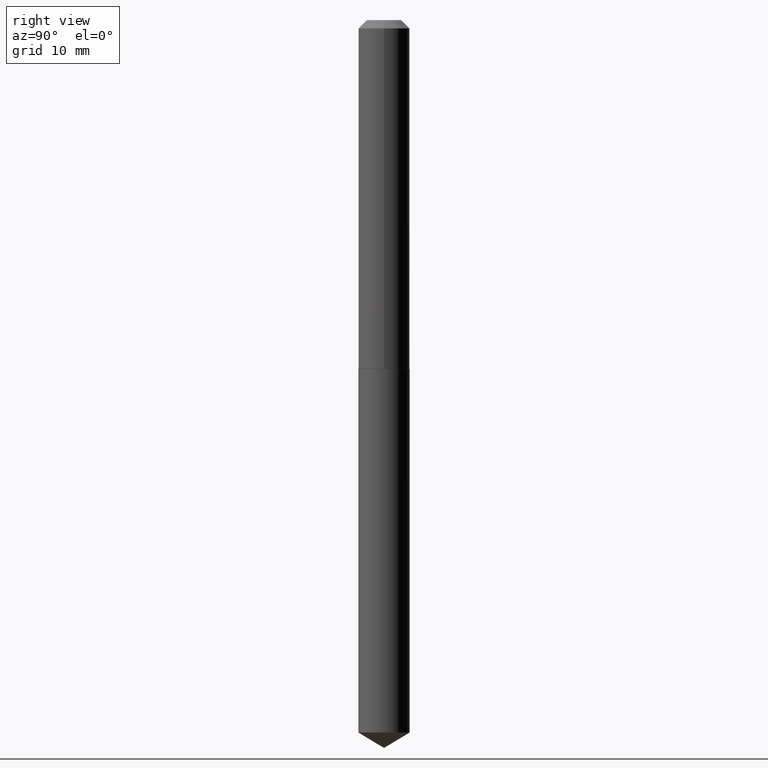
[diagram: clean part render]
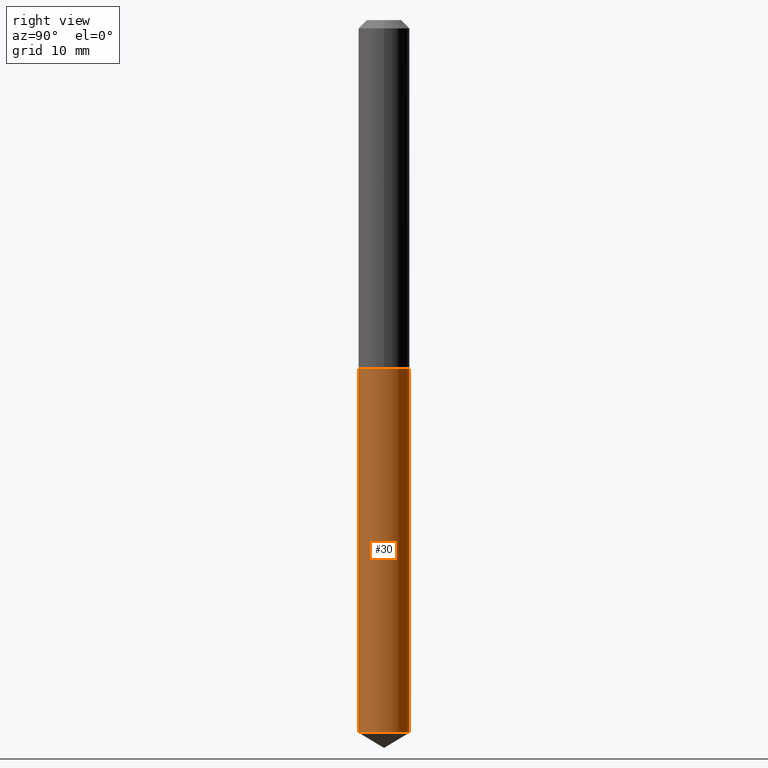
[diagram: same view with one face highlighted and labeled with its STEP entity id]
A machine part, right view. The second image highlights one B-rep face of the part: STEP entity #30.
In plain terms, the highlighted cylindrical surface (edge-blend (fillet) strip) has radius 2.4575 mm, axis along (-0, 0, 1).
Its self-contained STEP definition (entity closure, byte-faithful):
#4 = DIRECTION ( 'NONE',  ( -2.445415493139380021E-29, 3.491557686159059033E-15, 1.000000000000000000 ) ) ;
#14 = VERTEX_POINT ( 'NONE', #48 ) ;
#21 = CARTESIAN_POINT ( 'NONE',  ( -6.756016390660803673E-16, -0.09675000000000941180, -2.691866735109083031 ) ) ;
#30 = ADVANCED_FACE ( 'NONE', ( #292 ), #87, .T. ) ;
#32 = CARTESIAN_POINT ( 'NONE',  ( -6.756016390661139925E-16, -0.09675000000000461009, -1.318499999999999561 ) ) ;
#36 = EDGE_CURVE ( 'NONE', #78, #74, #122, .T. ) ;
#48 = CARTESIAN_POINT ( 'NONE',  ( 6.874500968479628186E-16, 0.09674999999999060740, -2.691866735109083919 ) ) ;
#63 = CARTESIAN_POINT ( 'NONE',  ( 6.874500968479290948E-16, 0.09674999999999539524, -1.318500000000000227 ) ) ;
#65 = CIRCLE ( 'NONE', #213, 0.09675000000000000266 ) ;
#73 = ORIENTED_EDGE ( 'NONE', *, *, #36, .F. ) ;
#74 = VERTEX_POINT ( 'NONE', #114 ) ;
#78 = VERTEX_POINT ( 'NONE', #32 ) ;
#84 = VECTOR ( 'NONE', #229, 39.37007874015748143 ) ;
#87 = CYLINDRICAL_SURFACE ( 'NONE', #239, 0.09675000000000000266 ) ;
#114 = CARTESIAN_POINT ( 'NONE',  ( 6.874500968479629173E-16, 0.09674999999999539524, -1.318500000000000227 ) ) ;
#117 = DIRECTION ( 'NONE',  ( -2.445415493139380021E-29, 3.491557686159059033E-15, 1.000000000000000000 ) ) ;
#122 = CIRCLE ( 'NONE', #340, 0.09675000000000000266 ) ;
#144 = DIRECTION ( 'NONE',  ( -2.445415493139380021E-29, 3.491557686159059033E-15, 1.000000000000000000 ) ) ;
#171 = CARTESIAN_POINT ( 'NONE',  ( 6.582802912753103572E-29, -9.398707325149981117E-15, -2.691866735109083475 ) ) ;
#175 = DIRECTION ( 'NONE',  ( -6.982962677686265922E-15, -1.000000000000000000, 2.823615497327403880E-15 ) ) ;
#183 = EDGE_CURVE ( 'NONE', #315, #14, #65, .T. ) ;
#192 = EDGE_CURVE ( 'NONE', #14, #74, #335, .T. ) ;
#209 = VECTOR ( 'NONE', #4, 39.37007874015748143 ) ;
#213 = AXIS2_PLACEMENT_3D ( 'NONE', #171, #144, #267 ) ;
#224 = EDGE_LOOP ( 'NONE', ( #285, #341, #73, #245 ) ) ;
#229 = DIRECTION ( 'NONE',  ( -2.445415493139380021E-29, 3.491557686159059033E-15, 1.000000000000000000 ) ) ;
#239 = AXIS2_PLACEMENT_3D ( 'NONE', #359, #265, #175 ) ;
#245 = ORIENTED_EDGE ( 'NONE', *, *, #262, .F. ) ;
#262 = EDGE_CURVE ( 'NONE', #315, #78, #291, .T. ) ;
#265 = DIRECTION ( 'NONE',  ( -2.445415493139380021E-29, 3.491557686159059033E-15, 1.000000000000000000 ) ) ;
#267 = DIRECTION ( 'NONE',  ( -6.982962677686265922E-15, -1.000000000000000000, 5.647230994654807760E-15 ) ) ;
#274 = CARTESIAN_POINT ( 'NONE',  ( 3.224350620955102598E-29, -4.603518145264687138E-15, -1.318499999999999783 ) ) ;
#285 = ORIENTED_EDGE ( 'NONE', *, *, #183, .T. ) ;
#291 = LINE ( 'NONE', #382, #84 ) ;
#292 = FACE_OUTER_BOUND ( 'NONE', #224, .T. ) ;
#315 = VERTEX_POINT ( 'NONE', #21 ) ;
#330 = DIRECTION ( 'NONE',  ( -6.982962677686265922E-15, -1.000000000000000000, 2.823615497327403880E-15 ) ) ;
#335 = LINE ( 'NONE', #63, #209 ) ;
#340 = AXIS2_PLACEMENT_3D ( 'NONE', #274, #117, #330 ) ;
#341 = ORIENTED_EDGE ( 'NONE', *, *, #192, .T. ) ;
#359 = CARTESIAN_POINT ( 'NONE',  ( 3.224350620955102598E-29, -4.603518145264687138E-15, -1.318499999999999783 ) ) ;
#382 = CARTESIAN_POINT ( 'NONE',  ( -6.756016390661139925E-16, -0.09675000000000461009, -1.318499999999999561 ) ) ;